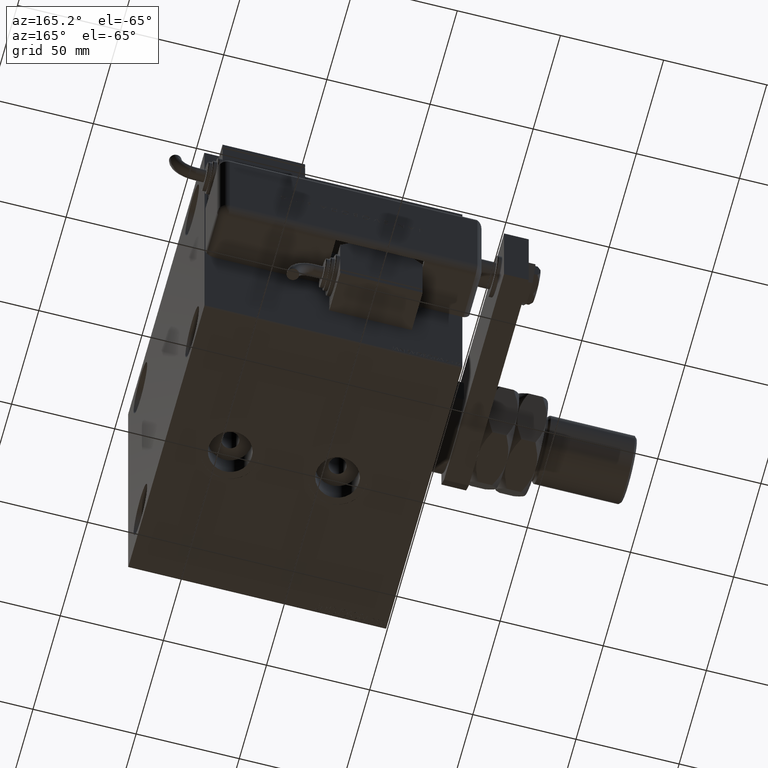
[diagram: clean part render]
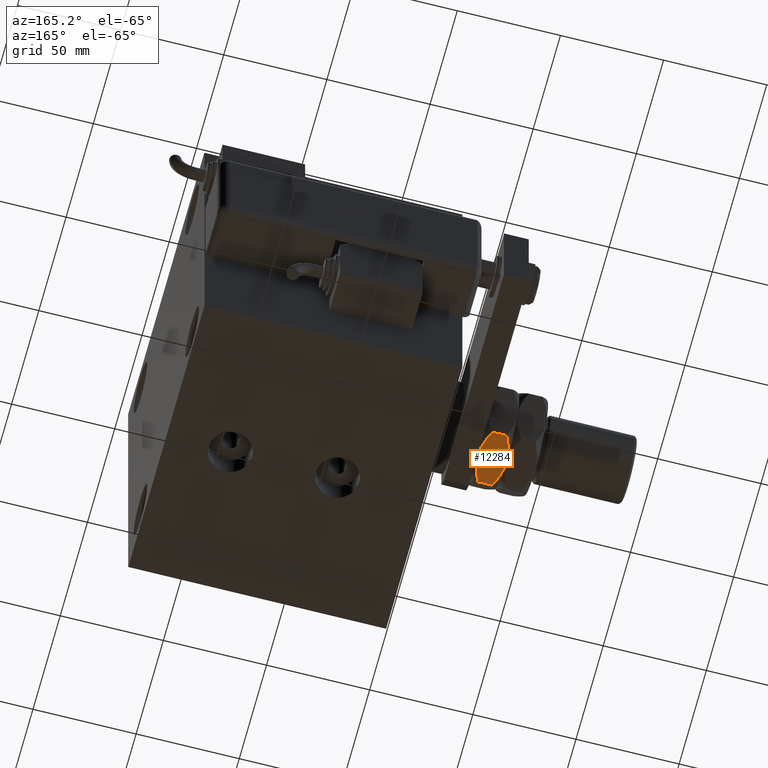
[diagram: same view with one face highlighted and labeled with its STEP entity id]
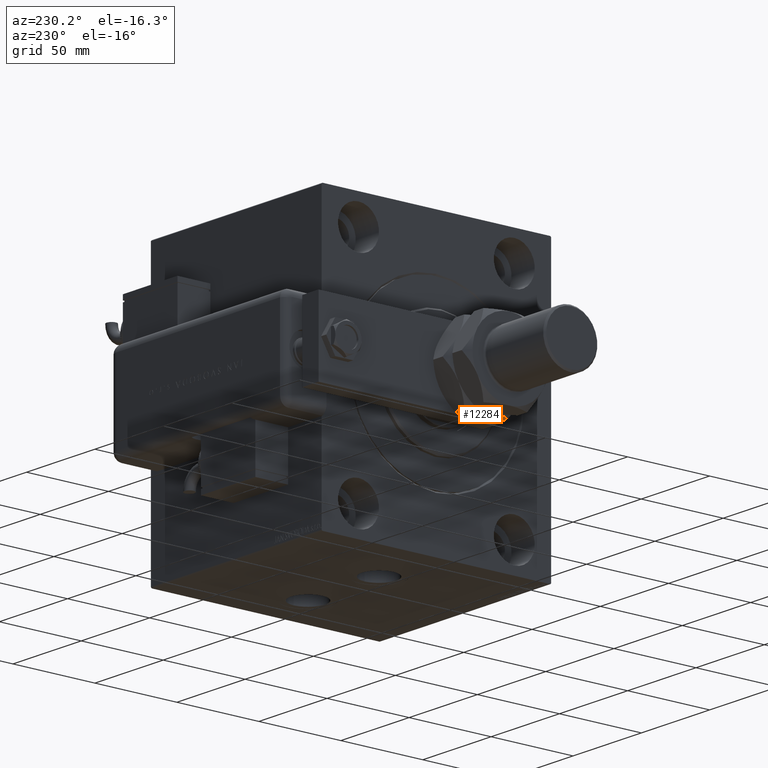
[diagram: same view with one face highlighted and labeled with its STEP entity id]
A machine part, auxiliary view. The second image highlights one B-rep face of the part: STEP entity #12284.
A second angle (auxiliary view) of the same face is appended — the face is thin or edge-on in the first view.
In plain terms, the highlighted planar face has unit normal (0, -0, 1).
Its self-contained STEP definition (entity closure, byte-faithful):
#881 = B_SPLINE_CURVE_WITH_KNOTS ( 'NONE', 3,
 ( #53961, #35253, #6473, #1409, #5241, #25751, #24520, #10904, #30184, #1100, #49197, #44450 ),
 .UNSPECIFIED., .F., .F.,
 ( 4, 2, 2, 2, 2, 4 ),
 ( 0.04844648401189701609, 0.05017495495687854939, 0.05190342590186008270, 0.05536036779182315626, 0.05881730968178622287, 0.06227425157174928255 ),
 .UNSPECIFIED. ) ;
#1100 = CARTESIAN_POINT ( 'NONE',  ( -23.00000000000000355, 11.19569807237884440, 2.561042619401238341 ) ) ;
#1147 = CARTESIAN_POINT ( 'NONE',  ( -23.00000000000000000, 13.27905619136140736, 10.44188761727722614 ) ) ;
#1409 = CARTESIAN_POINT ( 'NONE',  ( -23.00000000000000000, 2.327216729774867154, 0.1102307123705742187 ) ) ;
#4897 = EDGE_CURVE ( 'NONE', #43970, #57423, #57666, .T. ) ;
#5241 = CARTESIAN_POINT ( 'NONE',  ( -23.00000000000000355, 2.901297070256887878, 0.1754240326198573396 ) ) ;
#5379 = CARTESIAN_POINT ( 'NONE',  ( -23.00000000000000355, -11.19894991158976083, 2.562540189576872685 ) ) ;
#5589 = CARTESIAN_POINT ( 'NONE',  ( -23.00000000000000000, 11.19894991158977327, 11.43745981042313353 ) ) ;
#5653 = CARTESIAN_POINT ( 'NONE',  ( -23.00000000000000000, 13.27905619136140913, 3.558112382722781852 ) ) ;
#5892 = CARTESIAN_POINT ( 'NONE',  ( -23.00000000000000355, 9.582397350857402074, 12.08857522249926575 ) ) ;
#5997 = CARTESIAN_POINT ( 'NONE',  ( -23.00000000000000000, 13.27905619136140736, 14.00000000000000000 ) ) ;
#6473 = CARTESIAN_POINT ( 'NONE',  ( -23.00000000000000000, 1.169461507161065672, 0.02247740987888473957 ) ) ;
#6710 = CARTESIAN_POINT ( 'NONE',  ( -22.99999999999999645, 3.004629197474316090E-15, 14.00000000000000000 ) ) ;
#7233 = VERTEX_POINT ( 'NONE', #5653 ) ;
#7340 = EDGE_LOOP ( 'NONE', ( #14590, #19273, #49484, #41518, #40098, #61172 ) ) ;
#8997 = CARTESIAN_POINT ( 'NONE',  ( -23.00000000000000355, -2.901297070256879440, 13.82457596738015226 ) ) ;
#9190 = CARTESIAN_POINT ( 'NONE',  ( -23.00000000000000355, -13.27905619136139492, 3.558112382722778300 ) ) ;
#9279 = EDGE_CURVE ( 'NONE', #57423, #44331, #48034, .T. ) ;
#9916 = CARTESIAN_POINT ( 'NONE',  ( -23.00000000000000355, -11.19569807237881776, 11.43895738059877409 ) ) ;
#10904 = CARTESIAN_POINT ( 'NONE',  ( -22.99999999999999645, 7.944654633855242842, 1.310338416931337902 ) ) ;
#10973 = EDGE_CURVE ( 'NONE', #49523, #16588, #22118, .T. ) ;
#11567 = CARTESIAN_POINT ( 'NONE',  ( -23.00000000000000355, 12.24914829647812731, 10.95684156471886972 ) ) ;
#12284 = ADVANCED_FACE ( 'NONE', ( #49167 ), #25724, .F. ) ;
#14590 = ORIENTED_EDGE ( 'NONE', *, *, #9279, .F. ) ;
#16588 = VERTEX_POINT ( 'NONE', #6710 ) ;
#19273 = ORIENTED_EDGE ( 'NONE', *, *, #4897, .F. ) ;
#19307 = CARTESIAN_POINT ( 'NONE',  ( -23.00000000000000000, -9.034960763048694332, 1.705557518939548212 ) ) ;
#19371 = CARTESIAN_POINT ( 'NONE',  ( -23.00000000000000355, -13.27905619136139492, 14.00000000000000000 ) ) ;
#19612 = CARTESIAN_POINT ( 'NONE',  ( -23.00000000000000711, -7.383193414690651935, 1.150114060298056184 ) ) ;
#19718 = CARTESIAN_POINT ( 'NONE',  ( -23.00000000000000711, -2.327216729774856052, 13.88976928762942720 ) ) ;
#19916 = CARTESIAN_POINT ( 'NONE',  ( -23.00000000000001066, -7.935615110598580380, 1.325049712495173893 ) ) ;
#20065 = DIRECTION ( 'NONE',  ( 1.000000000000000000, -1.306360520641007414E-16, 0.000000000000000000 ) ) ;
#20202 = CARTESIAN_POINT ( 'NONE',  ( -23.00000000000000355, -13.27905619136139492, 10.44188761727722792 ) ) ;
#20451 = CARTESIAN_POINT ( 'NONE',  ( -23.00000000000000355, 7.383193414690657264, 12.84988593970195048 ) ) ;
#21062 = CARTESIAN_POINT ( 'NONE',  ( -22.99999999999999645, 3.004629197474316090E-15, 14.00000000000000000 ) ) ;
#21487 = B_SPLINE_CURVE_WITH_KNOTS ( 'NONE', 3,
 ( #28268, #42848, #38090, #19718, #8997, #62126, #53273, #34586, #53589, #9916, #58021, #48524 ),
 .UNSPECIFIED., .F., .F.,
 ( 4, 2, 2, 2, 2, 4 ),
 ( 0.04844648401189702303, 0.05017495495687855633, 0.05190342590186008964, 0.05536036779182314932, 0.05881730968178620900, 0.06227425157174927561 ),
 .UNSPECIFIED. ) ;
#22118 = B_SPLINE_CURVE_WITH_KNOTS ( 'NONE', 3,
 ( #1147, #11567, #5589, #5892, #30843, #50168, #20451, #39755, #59980, #21062 ),
 .UNSPECIFIED., .F., .F.,
 ( 4, 2, 2, 2, 4 ),
 ( 0.03459390932742920088, 0.03805705299854616336, 0.03978862483410464113, 0.04152019666966311889, 0.04844648401189702303 ),
 .UNSPECIFIED. ) ;
#23411 = CARTESIAN_POINT ( 'NONE',  ( -23.00000000000000000, 3.004629197474316879E-15, 0.000000000000000000 ) ) ;
#24030 = CARTESIAN_POINT ( 'NONE',  ( -23.00000000000000000, -2.335256030405477468, 1.924458856161769582E-15 ) ) ;
#24064 = CARTESIAN_POINT ( 'NONE',  ( -23.00000000000000355, -13.27905619136139492, 3.558112382722778300 ) ) ;
#24520 = CARTESIAN_POINT ( 'NONE',  ( -23.00000000000000000, 5.731580876109823031, 0.6796544745458229508 ) ) ;
#24709 = DIRECTION ( 'NONE',  ( -0.000000000000000000, -0.000000000000000000, -1.000000000000000000 ) ) ;
#24843 = VECTOR ( 'NONE', #24709, 1000.000000000000000 ) ;
#25724 = PLANE ( 'NONE',  #41302 ) ;
#25751 = CARTESIAN_POINT ( 'NONE',  ( -23.00000000000000355, 4.610166311818711726, 0.4304214863932659396 ) ) ;
#25893 = DIRECTION ( 'NONE',  ( -0.000000000000000000, -0.000000000000000000, -1.000000000000000000 ) ) ;
#28268 = CARTESIAN_POINT ( 'NONE',  ( -22.99999999999999645, 3.004629197474316090E-15, 14.00000000000000000 ) ) ;
#28464 = CARTESIAN_POINT ( 'NONE',  ( -23.00000000000000711, -12.24914829647811665, 3.043158435281140495 ) ) ;
#30184 = CARTESIAN_POINT ( 'NONE',  ( -23.00000000000000355, 9.036340143478465592, 1.691672435289185650 ) ) ;
#30779 = DIRECTION ( 'NONE',  ( 1.306360520641007414E-16, 1.000000000000000000, 0.000000000000000000 ) ) ;
#30843 = CARTESIAN_POINT ( 'NONE',  ( -23.00000000000000355, 9.034960763048701438, 12.29444248106045912 ) ) ;
#34586 = CARTESIAN_POINT ( 'NONE',  ( -23.00000000000001776, -7.944654633855229520, 12.68966158306866809 ) ) ;
#34782 = LINE ( 'NONE', #5997, #48770 ) ;
#35253 = CARTESIAN_POINT ( 'NONE',  ( -23.00000000000000355, 0.5827685162635678484, 1.694065894508601270E-15 ) ) ;
#37515 = CARTESIAN_POINT ( 'NONE',  ( -23.00000000000000000, 13.27905619136140736, 10.44188761727722614 ) ) ;
#38090 = CARTESIAN_POINT ( 'NONE',  ( -23.00000000000000355, -1.169461507161054348, 13.97752259012111686 ) ) ;
#39755 = CARTESIAN_POINT ( 'NONE',  ( -23.00000000000000355, 4.605953494949550198, 13.64024328841524358 ) ) ;
#40098 = ORIENTED_EDGE ( 'NONE', *, *, #48133, .T. ) ;
#41302 = AXIS2_PLACEMENT_3D ( 'NONE', #49485, #20065, #30779 ) ;
#41518 = ORIENTED_EDGE ( 'NONE', *, *, #10973, .F. ) ;
#42848 = CARTESIAN_POINT ( 'NONE',  ( -23.00000000000001066, -0.5827685162635569682, 14.00000000000000178 ) ) ;
#43194 = EDGE_CURVE ( 'NONE', #16588, #43970, #21487, .T. ) ;
#43970 = VERTEX_POINT ( 'NONE', #20202 ) ;
#44331 = VERTEX_POINT ( 'NONE', #50797 ) ;
#44450 = CARTESIAN_POINT ( 'NONE',  ( -23.00000000000000000, 13.27905619136140913, 3.558112382722781852 ) ) ;
#47792 = CARTESIAN_POINT ( 'NONE',  ( -22.99999999999999645, -9.582397350857382534, 1.911424777500739136 ) ) ;
#48034 = B_SPLINE_CURVE_WITH_KNOTS ( 'NONE', 3,
 ( #9190, #28464, #5379, #47792, #19307, #19916, #19612, #48090, #24030, #23411 ),
 .UNSPECIFIED., .F., .F.,
 ( 4, 2, 2, 2, 4 ),
 ( 0.03459390932742918701, 0.03805705299854614254, 0.03978862483410461337, 0.04152019666966309808, 0.04844648401189701609 ),
 .UNSPECIFIED. ) ;
#48090 = CARTESIAN_POINT ( 'NONE',  ( -23.00000000000000355, -4.605953494949542204, 0.3597567115847628005 ) ) ;
#48133 = EDGE_CURVE ( 'NONE', #49523, #7233, #34782, .T. ) ;
#48524 = CARTESIAN_POINT ( 'NONE',  ( -23.00000000000000355, -13.27905619136139492, 10.44188761727722792 ) ) ;
#48770 = VECTOR ( 'NONE', #25893, 1000.000000000000000 ) ;
#49167 = FACE_OUTER_BOUND ( 'NONE', #7340, .T. ) ;
#49197 = CARTESIAN_POINT ( 'NONE',  ( -23.00000000000000355, 12.24893264259408099, 3.043050608339117780 ) ) ;
#49484 = ORIENTED_EDGE ( 'NONE', *, *, #43194, .F. ) ;
#49485 = CARTESIAN_POINT ( 'NONE',  ( -23.00000000000000000, 13.27905619136140736, 14.00000000000000000 ) ) ;
#49523 = VERTEX_POINT ( 'NONE', #37515 ) ;
#50168 = CARTESIAN_POINT ( 'NONE',  ( -23.00000000000000355, 7.935615110598585709, 12.67495028750483499 ) ) ;
#50797 = CARTESIAN_POINT ( 'NONE',  ( -23.00000000000000000, 3.004629197474316879E-15, 0.000000000000000000 ) ) ;
#53273 = CARTESIAN_POINT ( 'NONE',  ( -23.00000000000000711, -5.731580876109808820, 13.32034552545418116 ) ) ;
#53589 = CARTESIAN_POINT ( 'NONE',  ( -23.00000000000000355, -9.036340143478442499, 12.30832756471082590 ) ) ;
#53961 = CARTESIAN_POINT ( 'NONE',  ( -23.00000000000000000, 3.004629197474316879E-15, 0.000000000000000000 ) ) ;
#55594 = EDGE_CURVE ( 'NONE', #44331, #7233, #881, .T. ) ;
#57423 = VERTEX_POINT ( 'NONE', #24064 ) ;
#57666 = LINE ( 'NONE', #19371, #24843 ) ;
#58021 = CARTESIAN_POINT ( 'NONE',  ( -23.00000000000000711, -12.24893264259406145, 10.95694939166089377 ) ) ;
#59980 = CARTESIAN_POINT ( 'NONE',  ( -23.00000000000000355, 2.335256030405488126, 14.00000000000000355 ) ) ;
#61172 = ORIENTED_EDGE ( 'NONE', *, *, #55594, .F. ) ;
#62126 = CARTESIAN_POINT ( 'NONE',  ( -23.00000000000001421, -4.610166311818703733, 13.56957851360674461 ) ) ;